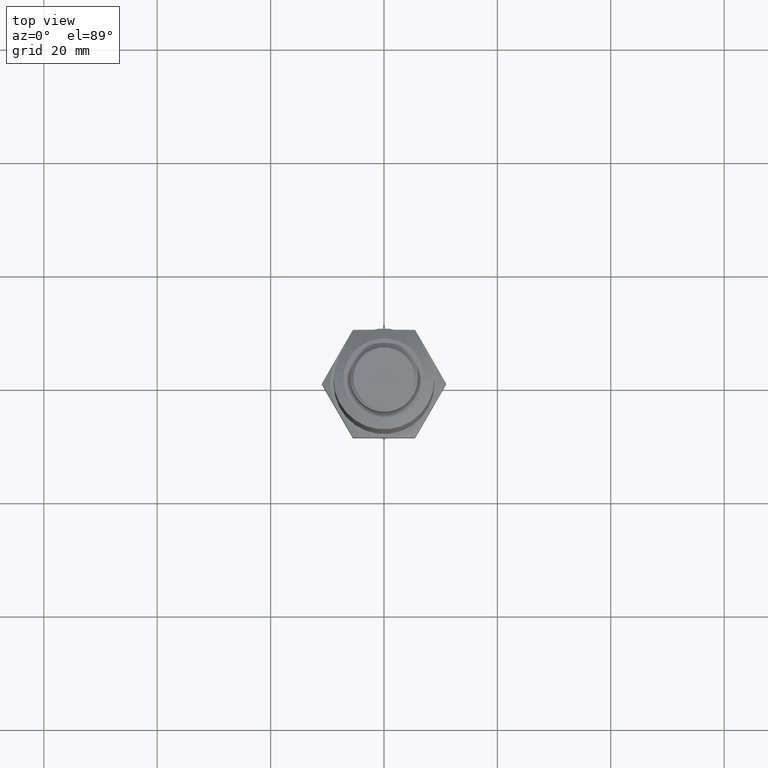
[diagram: clean part render]
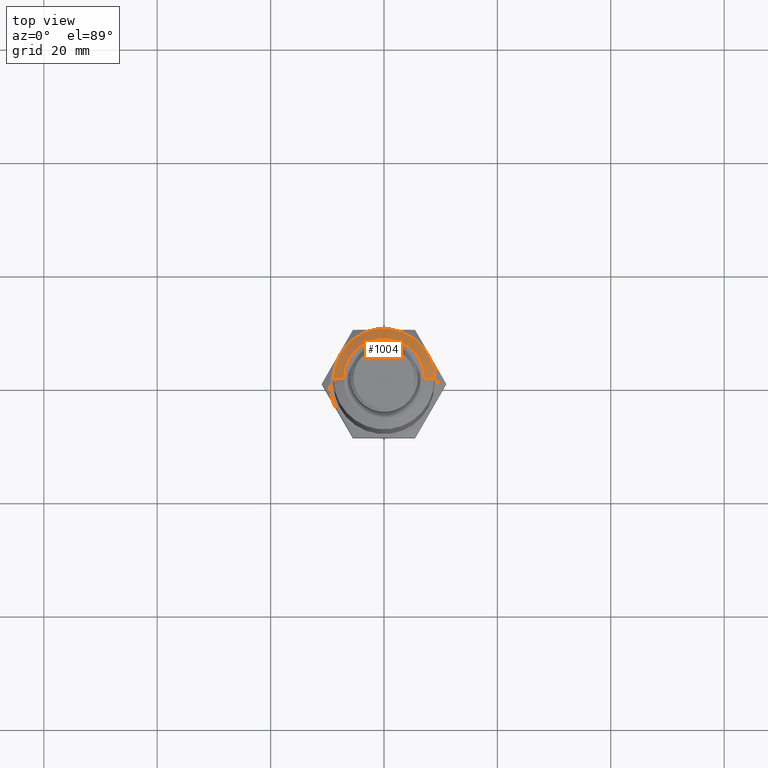
[diagram: same view with one face highlighted and labeled with its STEP entity id]
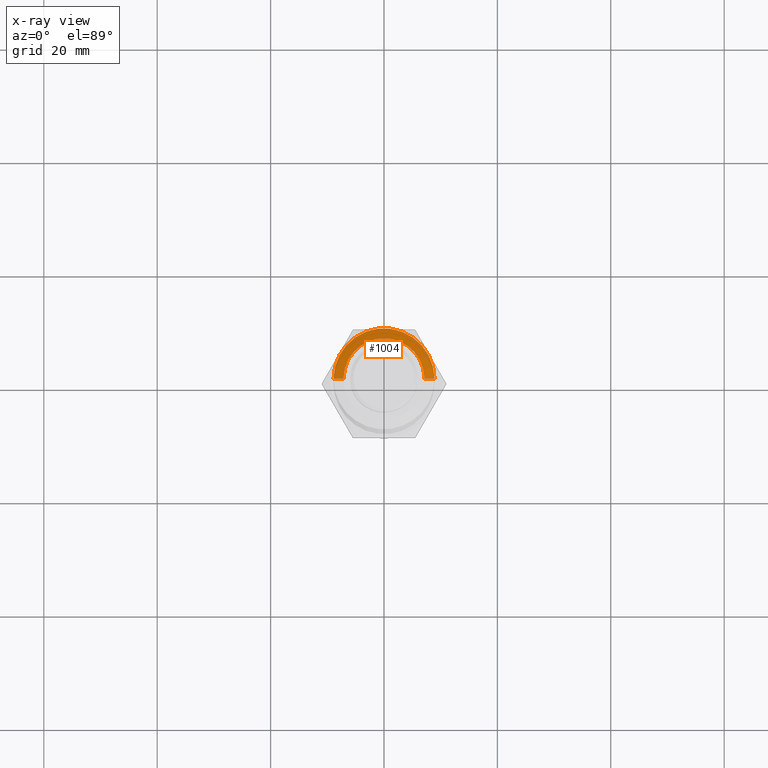
[diagram: x-ray of the same camera — body ghosted, the highlighted face saturated]
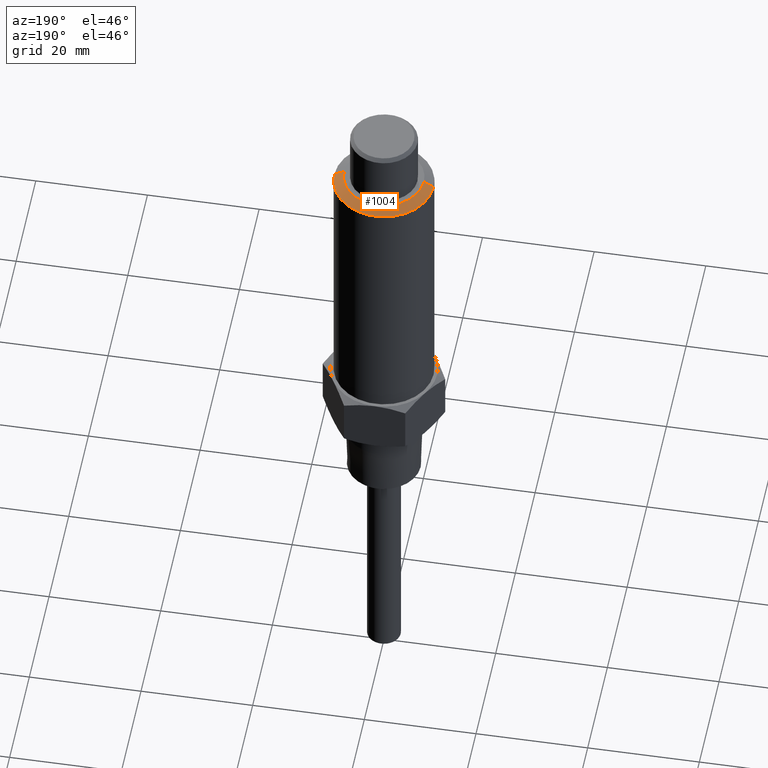
[diagram: same view with one face highlighted and labeled with its STEP entity id]
A machine part, top view. The second image highlights one B-rep face of the part: STEP entity #1004.
The next image is the same camera in x-ray: the body ghosted, the highlighted face saturated — about 0% of this face is hidden behind the body in this view.
A second angle (auxiliary view) of the same face is appended — the face is thin or edge-on in the first view.
In plain terms, the highlighted conical surface has half-angle 60.255 deg.
Its self-contained STEP definition (entity closure, byte-faithful):
#118 = ORIENTED_EDGE ( 'NONE', *, *, #192, .F. ) ;
#130 = AXIS2_PLACEMENT_3D ( 'NONE', #1206, #394, #286 ) ;
#192 = EDGE_CURVE ( 'NONE', #448, #379, #606, .T. ) ;
#286 = DIRECTION ( 'NONE',  ( -1.000000000000000000, 0.000000000000000000, 0.000000000000000000 ) ) ;
#316 = FACE_OUTER_BOUND ( 'NONE', #666, .T. ) ;
#329 = VERTEX_POINT ( 'NONE', #582 ) ;
#370 = VECTOR ( 'NONE', #488, 39.37007874015748143 ) ;
#379 = VERTEX_POINT ( 'NONE', #1419 ) ;
#394 = DIRECTION ( 'NONE',  ( 0.000000000000000000, -0.000000000000000000, -1.000000000000000000 ) ) ;
#396 = CARTESIAN_POINT ( 'NONE',  ( -0.3159448818897638289, -2.238481095103928716E-15, -0.4212598425196850127 ) ) ;
#418 = EDGE_CURVE ( 'NONE', #448, #521, #959, .T. ) ;
#447 = CARTESIAN_POINT ( 'NONE',  ( 0.3159448818897638289, 2.199789006272600251E-15, -0.4212598425196850127 ) ) ;
#448 = VERTEX_POINT ( 'NONE', #626 ) ;
#488 = DIRECTION ( 'NONE',  ( 0.8682431421244573011, 6.151534558731523457E-15, 0.4961389383568369782 ) ) ;
#521 = VERTEX_POINT ( 'NONE', #1012 ) ;
#534 = CIRCLE ( 'NONE', #130, 0.2814960629921260393 ) ;
#549 = DIRECTION ( 'NONE',  ( 0.000000000000000000, -0.000000000000000000, -1.000000000000000000 ) ) ;
#582 = CARTESIAN_POINT ( 'NONE',  ( 0.2814960629921260393, 1.934775205256920490E-15, -0.4015748031496061410 ) ) ;
#606 = CIRCLE ( 'NONE', #1452, 0.3503937007874015630 ) ;
#626 = CARTESIAN_POINT ( 'NONE',  ( -0.3503937007874015630, -1.210879168204456159E-15, -0.4409448818897638289 ) ) ;
#666 = EDGE_LOOP ( 'NONE', ( #1021, #1341, #1380, #118 ) ) ;
#673 = LINE ( 'NONE', #447, #911 ) ;
#681 = EDGE_CURVE ( 'NONE', #329, #379, #673, .T. ) ;
#767 = EDGE_CURVE ( 'NONE', #521, #329, #534, .T. ) ;
#863 = CONICAL_SURFACE ( 'NONE', #1456, 0.3503937007874015075, 1.051650212548370211 ) ;
#911 = VECTOR ( 'NONE', #1523, 39.37007874015748143 ) ;
#955 = DIRECTION ( 'NONE',  ( 1.000000000000000000, -8.881784197001252323E-16, 0.000000000000000000 ) ) ;
#959 = LINE ( 'NONE', #396, #370 ) ;
#1004 = ADVANCED_FACE ( 'NONE', ( #316 ), #863, .T. ) ;
#1012 = CARTESIAN_POINT ( 'NONE',  ( -0.2814960629921260393, -2.031753212603547997E-15, -0.4015748031496061410 ) ) ;
#1021 = ORIENTED_EDGE ( 'NONE', *, *, #418, .T. ) ;
#1117 = CARTESIAN_POINT ( 'NONE',  ( 0.000000000000000000, 0.000000000000000000, -0.4409448818897638289 ) ) ;
#1199 = DIRECTION ( 'NONE',  ( -0.000000000000000000, -0.000000000000000000, -1.000000000000000000 ) ) ;
#1206 = CARTESIAN_POINT ( 'NONE',  ( 0.000000000000000000, 0.000000000000000000, -0.4015748031496061410 ) ) ;
#1213 = CARTESIAN_POINT ( 'NONE',  ( 0.000000000000000000, 0.000000000000000000, -0.4409448818897638289 ) ) ;
#1258 = DIRECTION ( 'NONE',  ( -1.000000000000000000, 0.000000000000000000, 0.000000000000000000 ) ) ;
#1341 = ORIENTED_EDGE ( 'NONE', *, *, #767, .T. ) ;
#1380 = ORIENTED_EDGE ( 'NONE', *, *, #681, .T. ) ;
#1419 = CARTESIAN_POINT ( 'NONE',  ( 0.3503937007874015075, 6.099103475335243413E-16, -0.4409448818897638289 ) ) ;
#1452 = AXIS2_PLACEMENT_3D ( 'NONE', #1213, #1199, #955 ) ;
#1456 = AXIS2_PLACEMENT_3D ( 'NONE', #1117, #549, #1258 ) ;
#1523 = DIRECTION ( 'NONE',  ( 0.8682431421244573011, 6.045205440243088577E-15, -0.4961389383568369782 ) ) ;